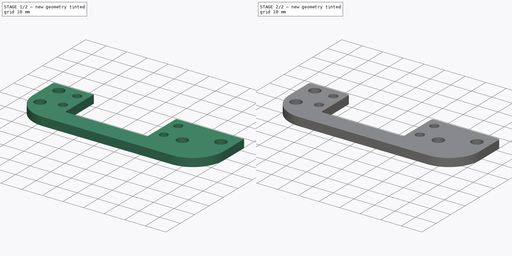
[diagram: build sequence overview — one tinted view per stage of 2, left to right]
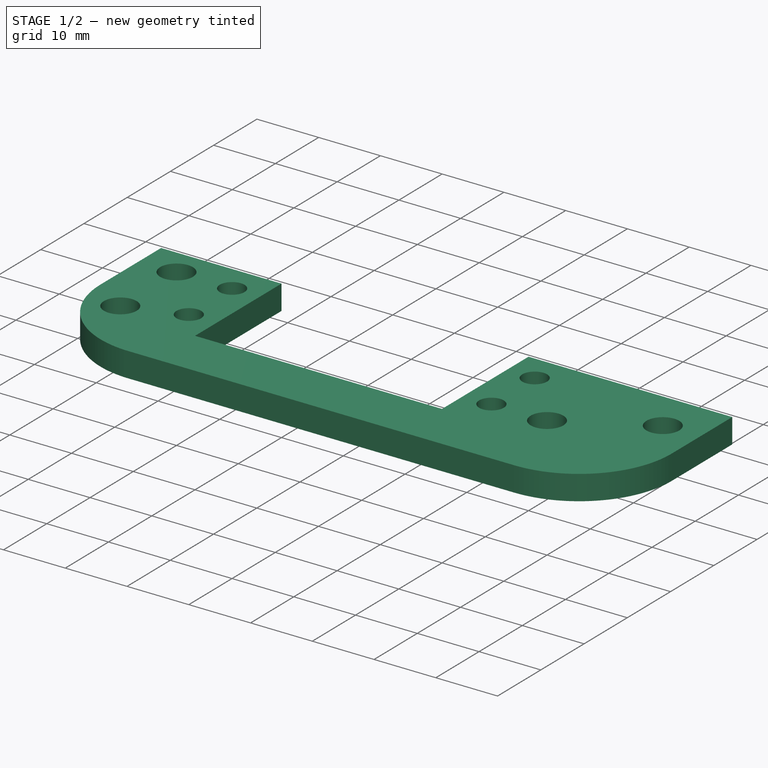
[diagram: stage 1 of 2 — iso view after this stage's code; geometry added in this stage tinted green]
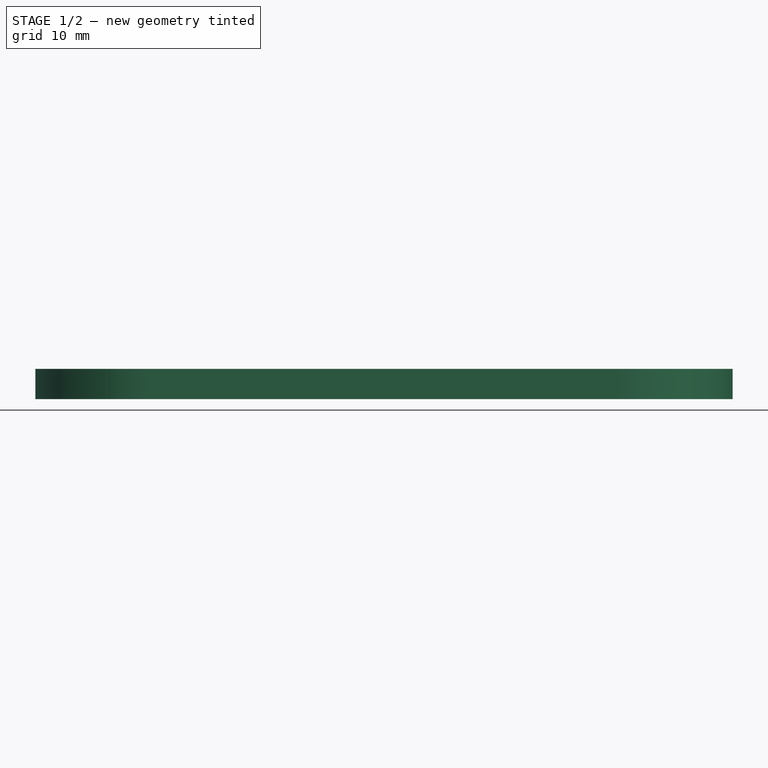
[diagram: stage 1 of 2 — front view after this stage's code; geometry added in this stage tinted green]
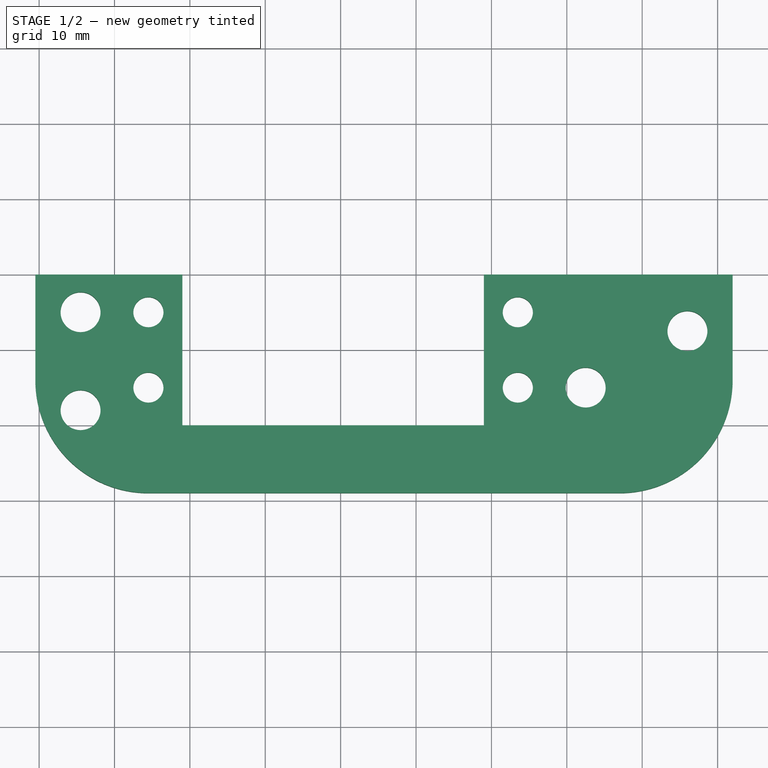
[diagram: stage 1 of 2 — top view after this stage's code; geometry added in this stage tinted green]
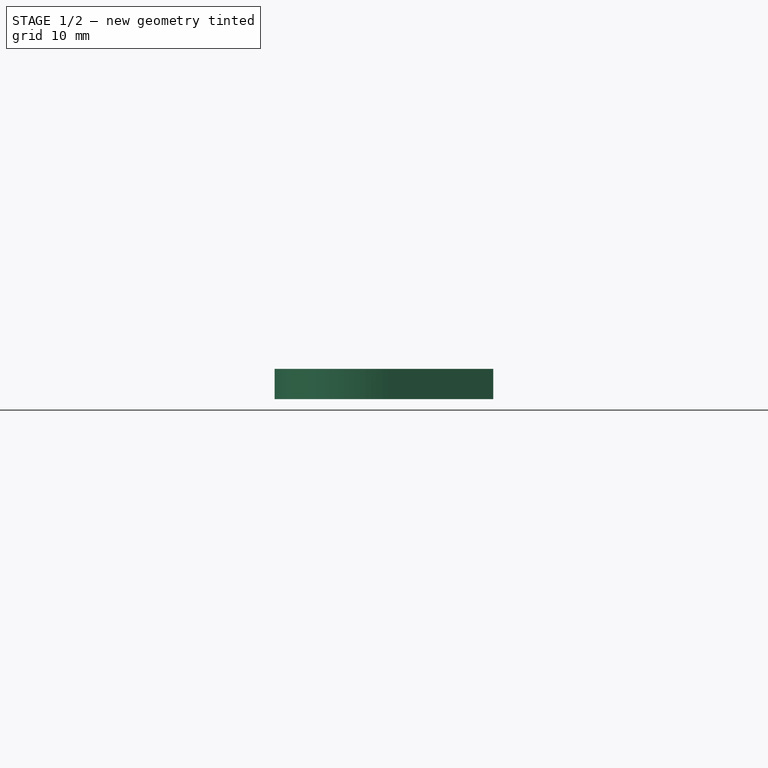
[diagram: stage 1 of 2 — right view after this stage's code; geometry added in this stage tinted green]
FCSTD DOCUMENT  (FreeCAD 0.19R24276 (Git))
Label: Servo_support_V2_long
License: All rights reserved
LicenseURL: http://en.wikipedia.org/wiki/All_rights_reserved
objects: PartDesign::Fillet×3, Sketcher::SketchObject×1, PartDesign::Pad×1, PartDesign::Body×1
note: 10 computed .brp shape members not serialized (recipe doc carries the construction recipe); baked Part::Feature solids carry a one-line shape summary decoded from their .brp

FEATURE [Sketcher::SketchObject] Sketch005  label="Sketch005_54x20"
  AttachmentOffset = pos=(0,0,-5) rot=(0,0,1;0rad)
  FullyConstrained = false
  MapMode = 5
  Placement = pos=(0,0,-3) rot=(0,0,1;0rad)
  sketch-geometry (59):
    g0: LineSegment StartX=-31 StartY=16 StartZ=0 EndX=9 EndY=16 EndZ=0
    g1: LineSegment StartX=9 StartY=16 StartZ=0 EndX=9 EndY=-16 EndZ=0
    g2: LineSegment StartX=9 StartY=-16 StartZ=0 EndX=-31 EndY=-16 EndZ=0
    g3: LineSegment StartX=-31 StartY=-16 StartZ=0 EndX=-31 EndY=16 EndZ=0
    g4: LineSegment StartX=-31 StartY=16 StartZ=0 EndX=9 EndY=-16 EndZ=0
    g5: LineSegment StartX=-31 StartY=-16 StartZ=0 EndX=9 EndY=16 EndZ=0
    g6: GeomPoint X=-11 Y=0 Z=0
    g7: GeomPoint X=-11 Y=0 Z=0
    g8: LineSegment StartX=-39.5 StartY=16 StartZ=0 EndX=-16.3733 EndY=16 EndZ=0
    g9: LineSegment StartX=17.5 StartY=16 StartZ=0 EndX=17.5 EndY=-16 EndZ=0
    g10: LineSegment StartX=17.5 StartY=-16 StartZ=0 EndX=16.3733 EndY=-16 EndZ=0
    g11: LineSegment StartX=-39.5 StartY=-16 StartZ=0 EndX=-39.5 EndY=16 EndZ=0
    g12: LineSegment StartX=-39.5 StartY=16 StartZ=0 EndX=17.5 EndY=-16 EndZ=0
    g13: LineSegment StartX=-39.5 StartY=-16 StartZ=0 EndX=17.5 EndY=16 EndZ=0
    g14: GeomPoint X=-11 Y=0 Z=0
    g15: GeomPoint X=-11 Y=0 Z=0
    g16: Circle CenterX=-35.5 CenterY=5 CenterZ=0 NormalX=0 NormalY=0 NormalZ=1 AngleXU=0 Radius=2
    g17: Circle CenterX=-35.5 CenterY=-5 CenterZ=0 NormalX=0 NormalY=0 NormalZ=1 AngleXU=0 Radius=2
    g18: LineSegment StartX=-11 StartY=0 StartZ=0 EndX=-11 EndY=-5 EndZ=0
    g19: Circle CenterX=13.5 CenterY=5 CenterZ=0 NormalX=0 NormalY=0 NormalZ=1 AngleXU=0 Radius=2
    g20: Circle CenterX=13.5 CenterY=-5 CenterZ=0 NormalX=0 NormalY=0 NormalZ=1 AngleXU=0 Radius=2
    g21: LineSegment StartX=-11 StartY=0 StartZ=0 EndX=-35.5 EndY=0 EndZ=0
    g22: LineSegment StartX=-11 StartY=0 StartZ=0 EndX=49.8748 EndY=0 EndZ=0
    g23: LineSegment StartX=24.5 StartY=16 StartZ=0 EndX=24.5 EndY=-16 EndZ=0
    g24: LineSegment StartX=17.5 StartY=16 StartZ=0 EndX=24.5 EndY=16 EndZ=0
    g25: LineSegment StartX=17.5 StartY=-16 StartZ=0 EndX=24.5 EndY=-16 EndZ=0
    g26: LineSegment StartX=0 StartY=0 StartZ=0 EndX=7.75 EndY=-13.4234 EndZ=0
    g27: LineSegment StartX=-0.873288 StartY=-16 StartZ=0 EndX=-39.5 EndY=-16 EndZ=0
    g28: LineSegment StartX=28.3615 StartY=16 StartZ=0 EndX=28.3615 EndY=-16 EndZ=0
    g29: LineSegment StartX=24.5 StartY=16 StartZ=0 EndX=28.3615 EndY=16 EndZ=0
    g30: LineSegment StartX=24.5 StartY=-16 StartZ=0 EndX=28.3615 EndY=-16 EndZ=0
    g31: ArcOfCircle CenterX=-7.75 CenterY=13.4234 CenterZ=0 NormalX=0 NormalY=0 NormalZ=1 AngleXU=0 Radius=9 StartAngle=0.290352 EndAngle=2.85124
    g32: LineSegment StartX=0 StartY=0 StartZ=0 EndX=-7.75 EndY=13.4234 EndZ=0
    g33: LineSegment StartX=0.873288 StartY=16 StartZ=0 EndX=17.5 EndY=16 EndZ=0
    g34: LineSegment StartX=-39.5 StartY=-16 StartZ=0 EndX=28.3615 EndY=-16 EndZ=0
    g35: Circle CenterX=-44.5 CenterY=-8 CenterZ=0 NormalX=0 NormalY=0 NormalZ=1 AngleXU=0 Radius=2.65
    g36: Circle CenterX=-44.5 CenterY=5 CenterZ=0 NormalX=0 NormalY=0 NormalZ=1 AngleXU=0 Radius=2.65
    g37: Circle CenterX=22.5 CenterY=-5 CenterZ=0 NormalX=0 NormalY=0 NormalZ=1 AngleXU=0 Radius=2.65
    g38: Circle CenterX=36 CenterY=2.5 CenterZ=0 NormalX=0 NormalY=0 NormalZ=1 AngleXU=0 Radius=2.65
    g39: LineSegment StartX=-50.5 StartY=16 StartZ=0 EndX=42 EndY=16 EndZ=0
    g40: LineSegment StartX=42 StartY=16 StartZ=0 EndX=42 EndY=-19 EndZ=0
    g41: LineSegment StartX=42 StartY=-19 StartZ=0 EndX=-50.5 EndY=-19 EndZ=0
    g42: LineSegment StartX=-50.5 StartY=16 StartZ=0 EndX=-50.5 EndY=-19 EndZ=0
    g43: LineSegment StartX=42 StartY=16 StartZ=0 EndX=0.873288 EndY=16 EndZ=0
    g44: LineSegment StartX=-50.5 StartY=16 StartZ=0 EndX=-50.5 EndY=-19 EndZ=0
    g45: LineSegment StartX=-50.5 StartY=-19 StartZ=0 EndX=42 EndY=-19 EndZ=0
    g46: LineSegment StartX=42 StartY=-19 StartZ=0 EndX=42 EndY=16 EndZ=0
    g47: LineSegment StartX=-16.3733 StartY=16 StartZ=0 EndX=-50.5 EndY=16 EndZ=0
    g48: Circle CenterX=22.5 CenterY=-5 CenterZ=0 NormalX=0 NormalY=0 NormalZ=1 AngleXU=0 Radius=5.5
    g49: Circle CenterX=36 CenterY=2.5 CenterZ=0 NormalX=0 NormalY=0 NormalZ=1 AngleXU=0 Radius=5.5
    g50: Circle CenterX=-44.5 CenterY=5 CenterZ=0 NormalX=0 NormalY=0 NormalZ=1 AngleXU=0 Radius=5.5
    g51: Circle CenterX=-44.5 CenterY=-8 CenterZ=0 NormalX=0 NormalY=0 NormalZ=1 AngleXU=0 Radius=5.5
    g52: LineSegment StartX=-50.5 StartY=10 StartZ=0 EndX=-31 EndY=10 EndZ=0
    g53: LineSegment StartX=-50.5 StartY=10 StartZ=0 EndX=-50.5 EndY=-19 EndZ=0
    g54: LineSegment StartX=42 StartY=10 StartZ=0 EndX=42 EndY=-19 EndZ=0
    g55: LineSegment StartX=-31 StartY=10 StartZ=0 EndX=-31 EndY=-10 EndZ=0
    g56: LineSegment StartX=-31 StartY=-10 StartZ=0 EndX=9 EndY=-10 EndZ=0
    g57: LineSegment StartX=9 StartY=-10 StartZ=0 EndX=9 EndY=10 EndZ=0
    g58: LineSegment StartX=9 StartY=10 StartZ=0 EndX=42 EndY=10 EndZ=0
  constraints (152):
    c: Coincident(g0,g1)
    c: Coincident(g1,g2)
    c: Coincident(g2,g3)
    c: Coincident(g3,g0)
    c: Horizontal(g0)
    c: Horizontal(g2)
    c: Vertical(g1)
    c: Vertical(g3)
    c: DistanceX(g2,g2) = 40
    c: Coincident(g4,g0)
    c: Coincident(g4,g1)
    c: Coincident(g5,g2)
    c: Coincident(g5,g0)
    c: PointOnObject(g6,g4)
    c: PointOnObject(g7,g5)
    c: Coincident(g7,g6)
    c: Coincident(g33,g9)
    c: Coincident(g9,g10)
    c: Coincident(g11,g8)
    c: Horizontal(g8)
    c: Horizontal(g10)
    c: Vertical(g9)
    c: Vertical(g11)
    c: Coincident(g12,g8)
    c: Coincident(g12,g9)
    c: Coincident(g13,g33)
    c: Equal(g9,g1)
    c: PointOnObject(g14,g13)
    c: PointOnObject(g15,g12)
    c: Coincident(g15,g14)
    c: Coincident(g14,g6)
    c: DistanceX(g27,g10) = 57
    c: Vertical(g17,g16)
    c: Coincident(g18,g6)
    c: Vertical(g18)
    c: Equal(g20,g19)
    c: Equal(g19,g17)
    c: Equal(g17,g16)
    c: Diameter(g20) = 4
    c: Vertical(g19,g20)
    c: Horizontal(g17,g20)
    c: Horizontal(g16,g19)
    c: Coincident(g21,g6)
    c: Horizontal(g21)
    c: Symmetric(g17,g16,g21)
    c: Coincident(g22,g6)
    c: Horizontal(g22)
    c: Symmetric(g17,g20,g18)
    c: DistanceY(g20,g19) = 10
    c: DistanceX(g17,g20) = 49
    c: Horizontal(g6,g-1)
    c: Coincident(g13,g11)
    c: Coincident(g27,g11)
    c: DistanceY(g9,g9) = 32
    c: DistanceX(g-1,g1) = 9
    c: Vertical(g23)
    c: Coincident(g24,g33)
    c: Horizontal(g24)
    c: Coincident(g25,g10)
    c: Horizontal(g25)
    c: Coincident(g23,g25)
    c: Coincident(g23,g24)
    c: DistanceX(g8,g23) = 64
    c: Coincident(g26,g-1)
    c: Angle(g26,g22) = 1.0472
    c: Distance(g26) = 15.5
    c: Tangent(g10,g27)
    c: Vertical(g28)
    c: Coincident(g29,g23)
    c: Horizontal(g29)
    c: Coincident(g30,g23)
    c: Horizontal(g30)
    c: Coincident(g30,g28)
    c: Coincident(g29,g28)
    c: Diameter(g31) = 18
    c: Coincident(g32,g-1)
    c: Coincident(g32,g31)
    c: Angle(g22,g32) = 2.0944
    c: Distance(g31,g-1) = 15.5
    c: PointOnObject(g8,g31)
    c: PointOnObject(g33,g31)
    c: Tangent(g8,g33)
    c: PointOnObject(g31,g0)
    c: PointOnObject(g31,g0)
    c: Coincident(g34,g11)
    c: Vertical(g35,g36)
    c: Equal(g37,g38)
    c: Horizontal(g20,g37)
    c: DistanceX(g-1,g38) = 36
    c: DistanceY(g-1,g38) = 2.5
    c: Horizontal(g39)
    c: Vertical(g40)
    c: Coincident(g40,g39)
    c: Coincident(g41,g40)
    c: Coincident(g42,g39)
    c: Vertical(g42)
    c: Coincident(g41,g42)
    c: Horizontal(g41)
    c: DistanceX(g38,g40) = 6
    c: Horizontal(g39,g8)
    c: Coincident(g34,g28)
    c: DistanceY(g40,g-1) = 19
    c: Coincident(g43,g39)
    c: Coincident(g44,g47)
    c: Coincident(g44,g41)
    c: Vertical(g44)
    c: Coincident(g45,g44)
    c: Coincident(g46,g45)
    c: Coincident(g46,g43)
    c: Vertical(g46)
    c: PointOnObject(g43,g31)
    c: PointOnObject(g47,g31)
    c: Tangent(g43,g47)
    c: Diameter(g35) = 5.3
    c: Equal(g35,g36)
    c: Equal(g36,g37)
    c: DistanceY(g6,g36) = 5
    c: DistanceY(g35,g36) = 13
    c: Coincident(g48,g37)
    c: Coincident(g49,g38)
    c: Equal(g49,g48)
    c: Horizontal(g47)
    c: Horizontal(g45)
    c: Coincident(g50,g36)
    c: Coincident(g51,g35)
    c: Equal(g50,g51)
    c: Equal(g51,g48)
    c: Diameter(g51) = 11
    c: DistanceX(g44,g45) = 92.5
    c: DistanceX(g35,g37) = 67
    c: DistanceX(g37,g38) = 13.5
    c: Horizontal(g52)
    c: PointOnObject(g52,g42)
    c: PointOnObject(g58,g40)
    c: DistanceY(g21,g52) = 10
    c: Coincident(g53,g52)
    c: Coincident(g45,g53)
    c: Coincident(g54,g58)
    c: Coincident(g54,g45)
    c: PointOnObject(g55,g52)
    c: Vertical(g55)
    c: DistanceY(g55,g6) = 10
    c: Vertical(g55,g2)
    c: Coincident(g56,g55)
    c: Horizontal(g56)
    c: PointOnObject(g56,g1)
    c: Coincident(g57,g56)
    c: PointOnObject(g57,g52)
    c: Vertical(g57)
    c: PointOnObject(g52,g3)
    c: Tangent(g52,g58)
    c: PointOnObject(g58,g1)
FEATURE [PartDesign::Pad] Pad
  Direction = (1,1,1)
  Length = 4
  Length2 = 100
  Placement = pos=(0,0,-3) rot=(0,0,1;0rad)
  Profile = -> Sketch005
  Type = 0
FEATURE [PartDesign::Fillet] Fillet
  Base = -> Pad [Edge2,Edge5]
  BaseFeature = -> Pad
  Placement = pos=(0,0,-3) rot=(0,0,1;0rad)
  Radius = 15
  SupportTransform = false
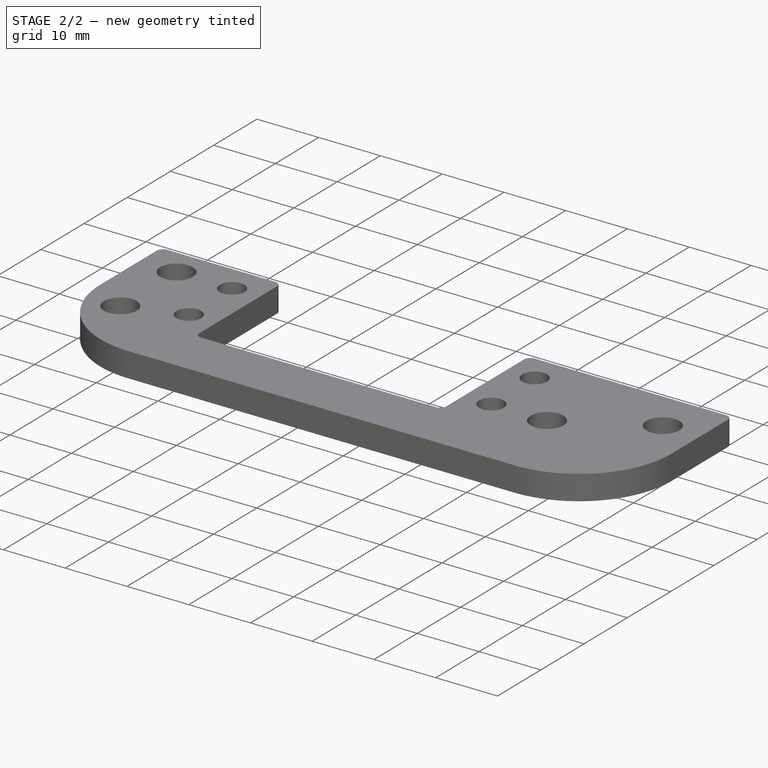
[diagram: stage 2 of 2 — iso view after this stage's code; geometry added in this stage tinted green]
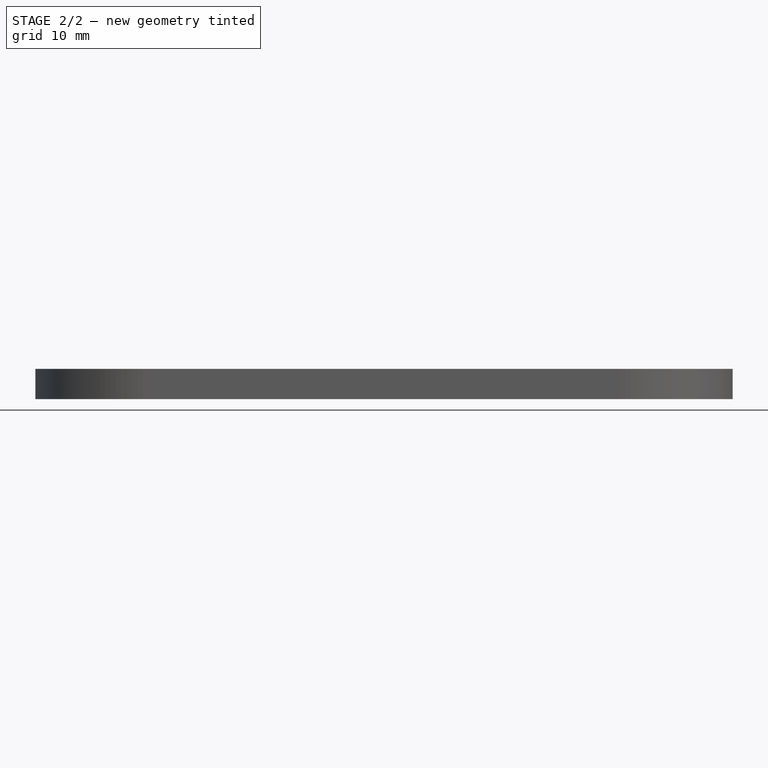
[diagram: stage 2 of 2 — front view after this stage's code; geometry added in this stage tinted green]
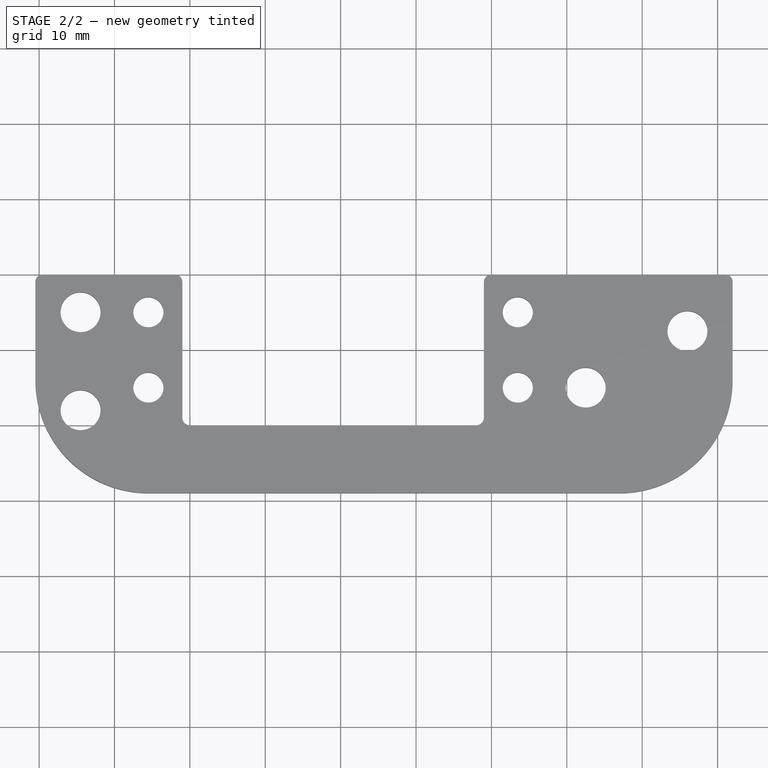
[diagram: stage 2 of 2 — top view after this stage's code; geometry added in this stage tinted green]
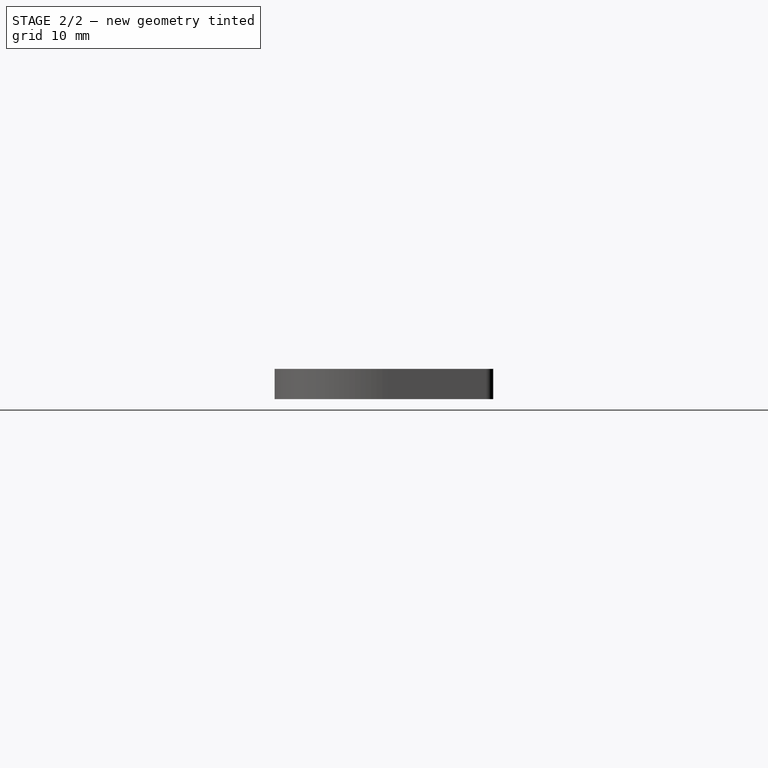
[diagram: stage 2 of 2 — right view after this stage's code; geometry added in this stage tinted green]
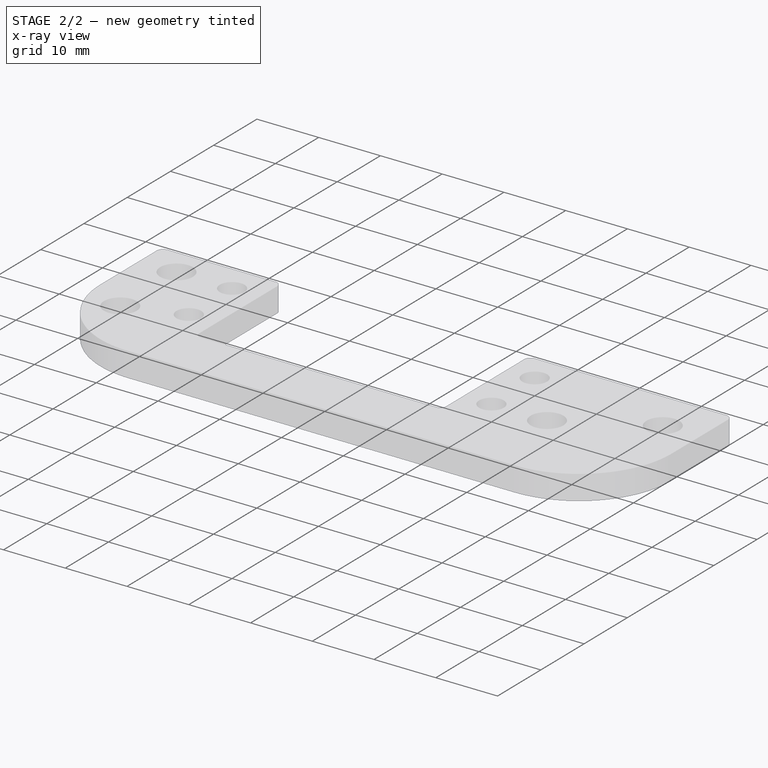
[diagram: stage 2 of 2 — x-ray composite at the iso view; earlier geometry ghosted, this stage's added geometry solid]
FEATURE [PartDesign::Fillet] Fillet001
  Base = -> Fillet [Edge45,Edge46,Edge24,Edge3]
  BaseFeature = -> Fillet
  Placement = pos=(0,0,-3) rot=(0,0,1;0rad)
  Radius = 1
  SupportTransform = false
FEATURE [PartDesign::Fillet] Fillet002
  Base = -> Fillet001 [Edge53,Edge55]
  BaseFeature = -> Fillet001
  Placement = pos=(0,0,-3) rot=(0,0,1;0rad)
  Radius = 1
  SupportTransform = false
FEATURE [PartDesign::Body] Body
  Group = -> [Sketch005,Pad,Fillet,Fillet001,Fillet002]
  Origin = -> Origin
  Tip = -> Fillet002
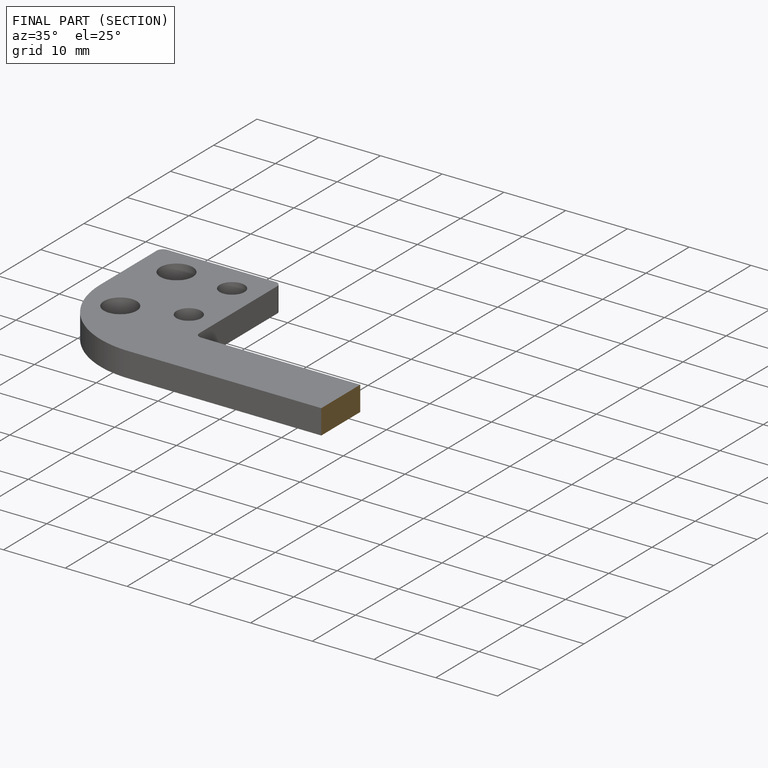
[diagram: finished part — half-section view (interior)]
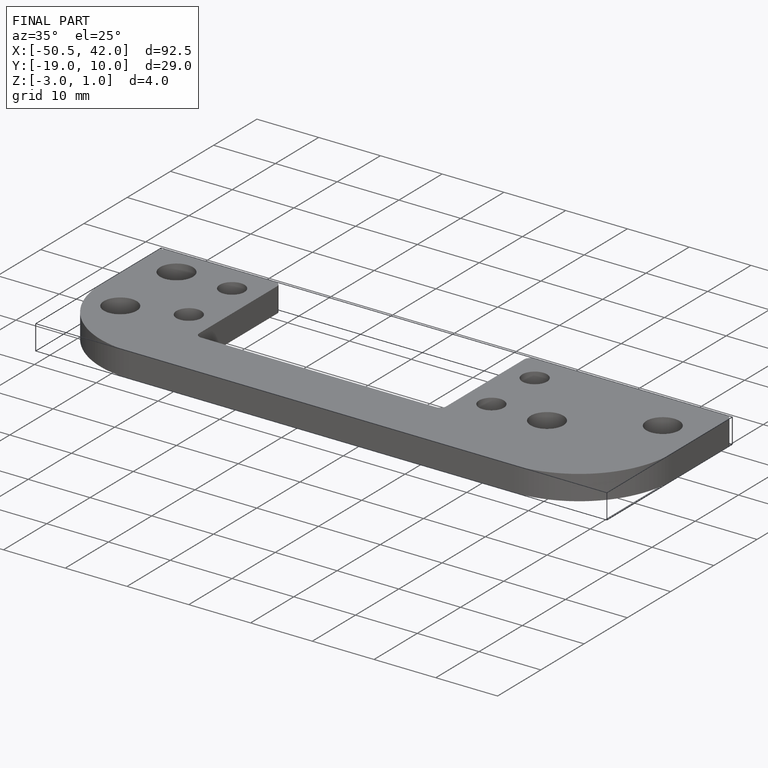
[diagram: finished part — iso view with bounding-box wireframe]
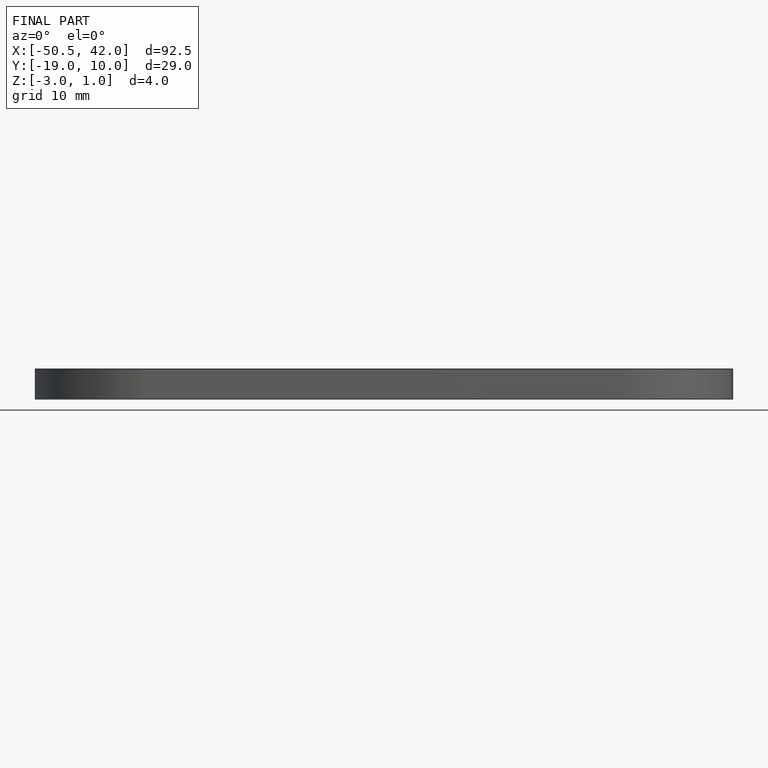
[diagram: finished part — front view with bounding-box wireframe]
